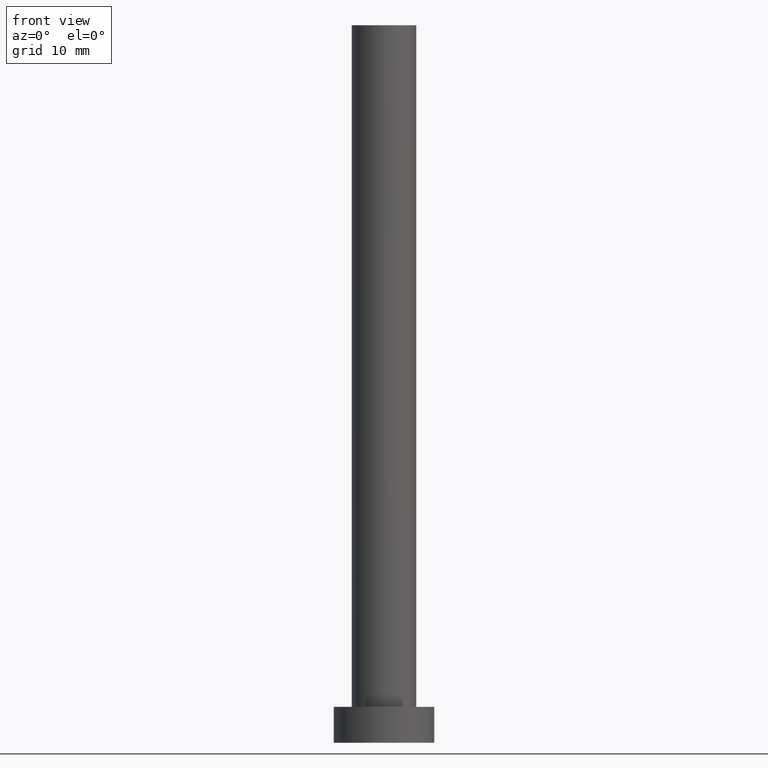
[diagram: clean part render]
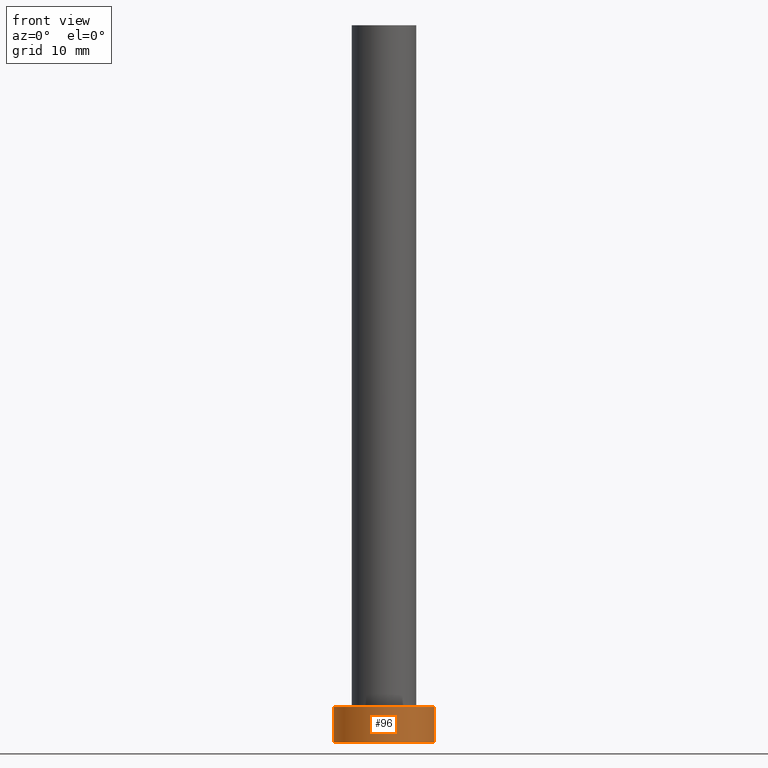
[diagram: same view with one face highlighted and labeled with its STEP entity id]
A machine part, front view. The second image highlights one B-rep face of the part: STEP entity #96.
In plain terms, the highlighted cylindrical surface (partial cylindrical patch) has radius 7 mm, axis along (-0, -0, -1).
Its self-contained STEP definition (entity closure, byte-faithful):
#7 = CARTESIAN_POINT ( 'NONE',  ( 7.000000000000000000, 8.572527594031473190E-16, 5.000000000000000000 ) ) ;
#11 = VERTEX_POINT ( 'NONE', #186 ) ;
#16 = DIRECTION ( 'NONE',  ( -0.000000000000000000, -0.000000000000000000, -1.000000000000000000 ) ) ;
#23 = EDGE_LOOP ( 'NONE', ( #42, #230, #47, #222 ) ) ;
#28 = CARTESIAN_POINT ( 'NONE',  ( 0.000000000000000000, 0.000000000000000000, 0.000000000000000000 ) ) ;
#42 = ORIENTED_EDGE ( 'NONE', *, *, #101, .F. ) ;
#47 = ORIENTED_EDGE ( 'NONE', *, *, #160, .T. ) ;
#49 = AXIS2_PLACEMENT_3D ( 'NONE', #28, #185, #219 ) ;
#55 = VERTEX_POINT ( 'NONE', #201 ) ;
#78 = CIRCLE ( 'NONE', #135, 7.000000000000000000 ) ;
#81 = DIRECTION ( 'NONE',  ( 1.000000000000000000, 0.000000000000000000, 0.000000000000000000 ) ) ;
#89 = CARTESIAN_POINT ( 'NONE',  ( -7.000000000000000000, 0.000000000000000000, 5.000000000000000000 ) ) ;
#90 = VERTEX_POINT ( 'NONE', #7 ) ;
#96 = ADVANCED_FACE ( 'NONE', ( #168 ), #242, .T. ) ;
#101 = EDGE_CURVE ( 'NONE', #90, #163, #118, .T. ) ;
#103 = DIRECTION ( 'NONE',  ( 0.000000000000000000, 0.000000000000000000, 1.000000000000000000 ) ) ;
#112 = DIRECTION ( 'NONE',  ( -0.000000000000000000, -0.000000000000000000, -1.000000000000000000 ) ) ;
#118 = LINE ( 'NONE', #193, #236 ) ;
#119 = VECTOR ( 'NONE', #112, 1000.000000000000000 ) ;
#132 = LINE ( 'NONE', #89, #119 ) ;
#135 = AXIS2_PLACEMENT_3D ( 'NONE', #143, #103, #81 ) ;
#139 = CARTESIAN_POINT ( 'NONE',  ( 0.000000000000000000, 0.000000000000000000, 5.000000000000000000 ) ) ;
#143 = CARTESIAN_POINT ( 'NONE',  ( 0.000000000000000000, 0.000000000000000000, 5.000000000000000000 ) ) ;
#144 = EDGE_CURVE ( 'NONE', #11, #90, #78, .T. ) ;
#160 = EDGE_CURVE ( 'NONE', #11, #55, #132, .T. ) ;
#163 = VERTEX_POINT ( 'NONE', #246 ) ;
#168 = FACE_OUTER_BOUND ( 'NONE', #23, .T. ) ;
#185 = DIRECTION ( 'NONE',  ( 0.000000000000000000, 0.000000000000000000, 1.000000000000000000 ) ) ;
#186 = CARTESIAN_POINT ( 'NONE',  ( -7.000000000000000000, 0.000000000000000000, 5.000000000000000000 ) ) ;
#193 = CARTESIAN_POINT ( 'NONE',  ( 7.000000000000000000, 8.572527594031473190E-16, 5.000000000000000000 ) ) ;
#201 = CARTESIAN_POINT ( 'NONE',  ( -7.000000000000000000, 0.000000000000000000, 0.000000000000000000 ) ) ;
#213 = DIRECTION ( 'NONE',  ( -1.000000000000000000, 0.000000000000000000, 0.000000000000000000 ) ) ;
#214 = EDGE_CURVE ( 'NONE', #55, #163, #220, .T. ) ;
#219 = DIRECTION ( 'NONE',  ( 1.000000000000000000, 0.000000000000000000, 0.000000000000000000 ) ) ;
#220 = CIRCLE ( 'NONE', #49, 7.000000000000000000 ) ;
#222 = ORIENTED_EDGE ( 'NONE', *, *, #214, .T. ) ;
#229 = AXIS2_PLACEMENT_3D ( 'NONE', #139, #251, #213 ) ;
#230 = ORIENTED_EDGE ( 'NONE', *, *, #144, .F. ) ;
#236 = VECTOR ( 'NONE', #16, 1000.000000000000000 ) ;
#242 = CYLINDRICAL_SURFACE ( 'NONE', #229, 7.000000000000000000 ) ;
#246 = CARTESIAN_POINT ( 'NONE',  ( 7.000000000000000000, 8.572527594031473190E-16, 0.000000000000000000 ) ) ;
#251 = DIRECTION ( 'NONE',  ( -0.000000000000000000, -0.000000000000000000, -1.000000000000000000 ) ) ;